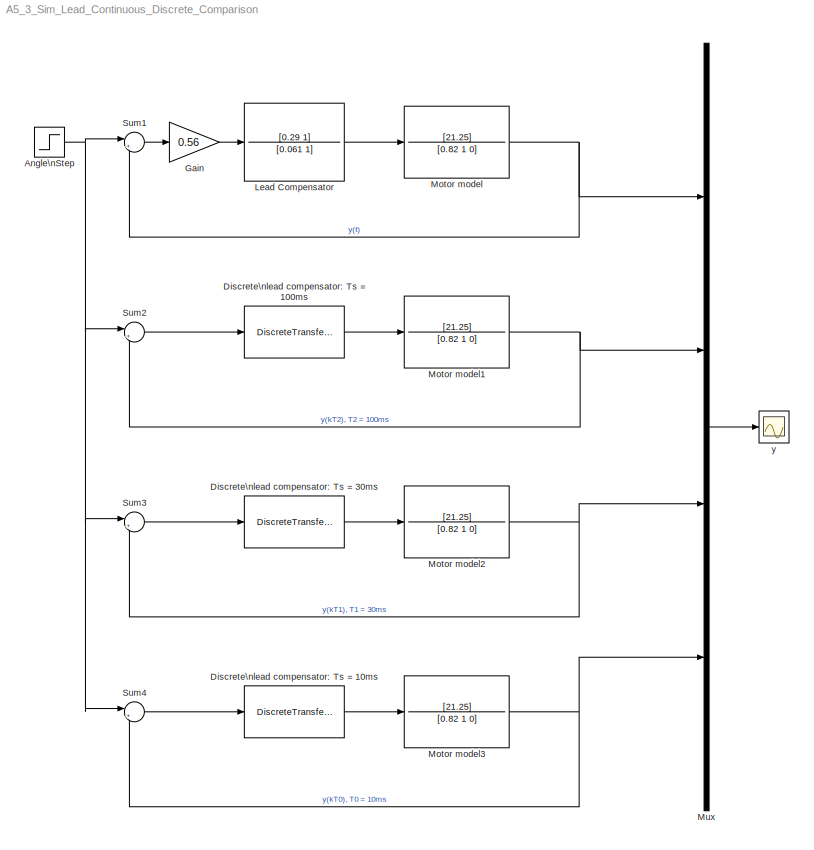
MODEL A5_3_Sim_Lead_Continuous_Discrete_Comparison
KIND model
BLOCK [Step] Angle\nStep
  After = 10
  SID = 148
  SampleTime = 0
BLOCK [DiscreteTransferFcn] Discrete\nlead compensator: Ts = 100ms
  Denominator = [1 -0.0991]
  Numerator = [1.715 -1.211]
  Ports = [1, 1]
  SID = 153
  SampleTime = 0.1
BLOCK [DiscreteTransferFcn] Discrete\nlead compensator: Ts = 10ms
  Denominator = [1 -0.8485]
  Numerator = [2.503 -2.418]
  Ports = [1, 1]
  SID = 160
  SampleTime = 0.01
BLOCK [DiscreteTransferFcn] Discrete\nlead compensator: Ts = 30ms
  Denominator = [1 -0.6047]
  Numerator = [2.25 -2.029]
  Ports = [1, 1]
  SID = 157
  SampleTime = 0.03
BLOCK [Gain] Gain
  Gain = 0.56
  OutDataTypeMode = Inherit via internal rule
  OutDataTypeStr = Inherit: Inherit via internal rule
  ParamDataTypeStr = Inherit: Inherit via internal rule
  ParameterDataTypeMode = Inherit via internal rule
  SID = 152
  SaturateOnIntegerOverflow = off
BLOCK [TransferFcn] Lead Compensator
  Denominator = [0.061 1]
  Numerator = [0.29 1]
  SID = 151
BLOCK [TransferFcn] Motor model
  Denominator = [0.82 1 0]
  Numerator = [21.25]
  SID = 150
BLOCK [TransferFcn] Motor model1
  Denominator = [0.82 1 0]
  Numerator = [21.25]
  SID = 154
BLOCK [TransferFcn] Motor model2
  Denominator = [0.82 1 0]
  Numerator = [21.25]
  SID = 158
BLOCK [TransferFcn] Motor model3
  Denominator = [0.82 1 0]
  Numerator = [21.25]
  SID = 161
BLOCK [Mux] Mux
  DisplayOption = bar
  Ports = [4, 1]
  SID = 163
BLOCK [Sum] Sum1
  IconShape = round
  InputSameDT = off
  Inputs = |+-
  OutDataTypeMode = Inherit via internal rule
  OutDataTypeStr = Inherit: Inherit via internal rule
  Ports = [2, 1]
  SID = 4
  SaturateOnIntegerOverflow = off
BLOCK [Sum] Sum2
  IconShape = round
  InputSameDT = off
  Inputs = |+-
  OutDataTypeMode = Inherit via internal rule
  OutDataTypeStr = Inherit: Inherit via internal rule
  Ports = [2, 1]
  SID = 155
  SaturateOnIntegerOverflow = off
BLOCK [Sum] Sum3
  IconShape = round
  InputSameDT = off
  Inputs = |+-
  OutDataTypeMode = Inherit via internal rule
  OutDataTypeStr = Inherit: Inherit via internal rule
  Ports = [2, 1]
  SID = 159
  SaturateOnIntegerOverflow = off
BLOCK [Sum] Sum4
  IconShape = round
  InputSameDT = off
  Inputs = |+-
  OutDataTypeMode = Inherit via internal rule
  OutDataTypeStr = Inherit: Inherit via internal rule
  Ports = [2, 1]
  SID = 162
  SaturateOnIntegerOverflow = off
BLOCK [Scope] y
  DataFormat = StructureWithTime
  Floating = off
  LimitDataPoints = off
  NumInputPorts = 1
  Ports = [1]
  SID = 149
  SampleTime = 0
  SaveName = ScopeData1
  YMax = 11
  YMin = -0.5
NET Angle\nStep:1 -> Sum1:1, Sum2:1, Sum3:1, Sum4:1
LINE Discrete\nlead compensator: Ts = 100ms:1 -> Motor model1:1
LINE Discrete\nlead compensator: Ts = 10ms:1 -> Motor model3:1
LINE Discrete\nlead compensator: Ts = 30ms:1 -> Motor model2:1
LINE Gain:1 -> Lead Compensator:1
LINE Lead Compensator:1 -> Motor model:1
NET Motor model1:1 -> Mux:2, Sum2:2
NET Motor model2:1 -> Mux:3, Sum3:2
NET Motor model3:1 -> Mux:4, Sum4:2
NET Motor model:1 -> Mux:1, Sum1:2
LINE Mux:1 -> y:1
LINE Sum1:1 -> Gain:1
LINE Sum2:1 -> Discrete\nlead compensator: Ts = 100ms:1
LINE Sum3:1 -> Discrete\nlead compensator: Ts = 30ms:1
LINE Sum4:1 -> Discrete\nlead compensator: Ts = 10ms:1
note: NET lines group one-source signal fan-out (src -> all destinations, sorted); 1:1 wires keep LINE
